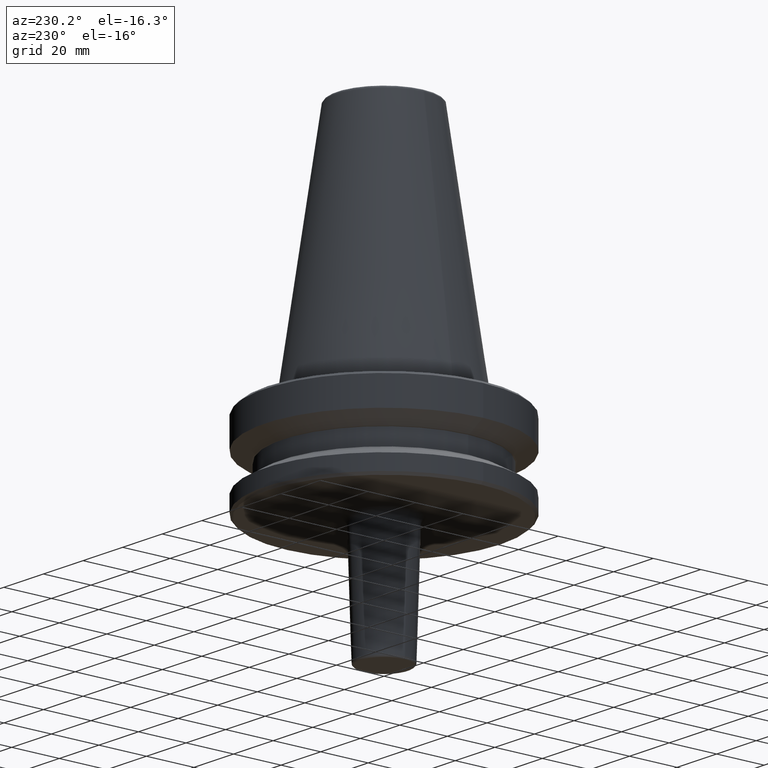
[diagram: clean part render]
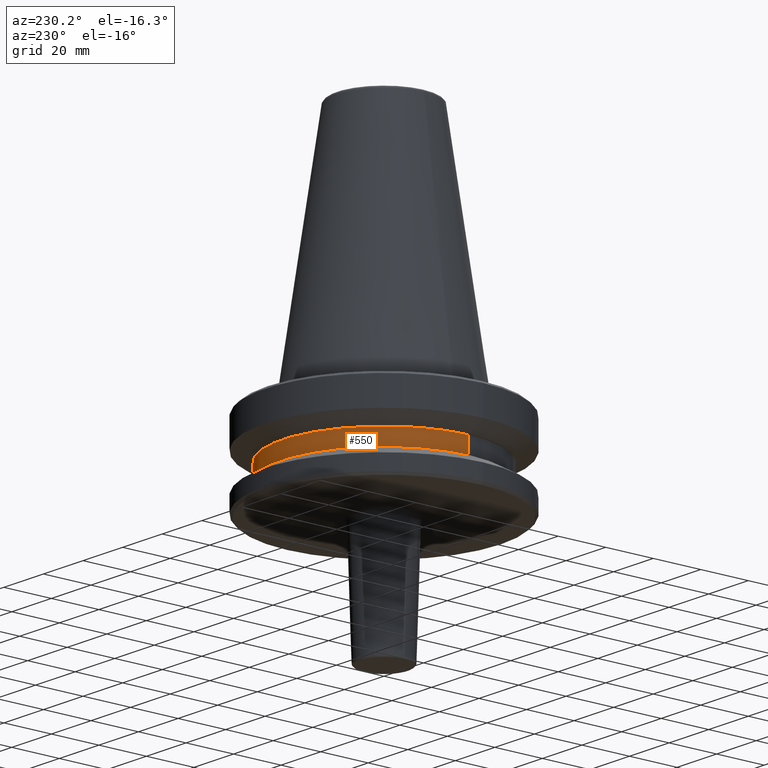
[diagram: same view with one face highlighted and labeled with its STEP entity id]
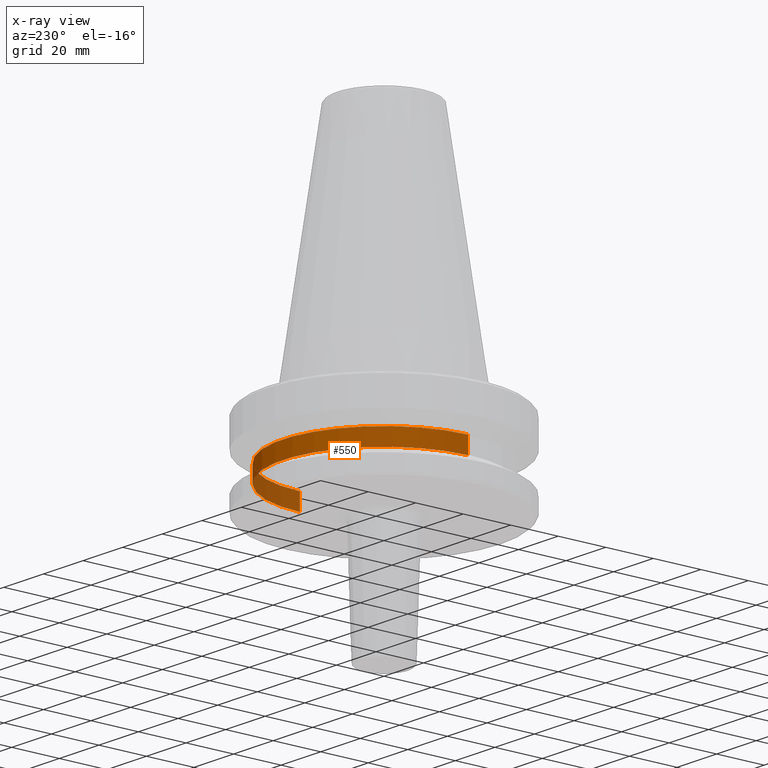
[diagram: x-ray of the same camera — body ghosted, the highlighted face saturated]
A machine part, auxiliary view. The second image highlights one B-rep face of the part: STEP entity #550.
The next image is the same camera in x-ray: the body ghosted, the highlighted face saturated — about 18% of this face is hidden behind the body in this view.
In plain terms, the highlighted cylindrical surface (partial cylindrical patch) has radius 42.5 mm, axis along (-0, -0, 1).
Its self-contained STEP definition (entity closure, byte-faithful):
#27 = LINE ( 'NONE', #349, #595 ) ;
#32 = VERTEX_POINT ( 'NONE', #195 ) ;
#51 = EDGE_LOOP ( 'NONE', ( #950, #237, #276, #78 ) ) ;
#58 = CARTESIAN_POINT ( 'NONE',  ( -42.50000000000000000, 5.204748896376250900E-015, -19.70000000000001000 ) ) ;
#78 = ORIENTED_EDGE ( 'NONE', *, *, #250, .F. ) ;
#101 = DIRECTION ( 'NONE',  ( -0.0000000000000000000, -0.0000000000000000000, 1.000000000000000000 ) ) ;
#105 = EDGE_CURVE ( 'NONE', #32, #893, #962, .T. ) ;
#135 = EDGE_CURVE ( 'NONE', #622, #852, #158, .T. ) ;
#158 = CIRCLE ( 'NONE', #708, 42.50000000000000000 ) ;
#195 = CARTESIAN_POINT ( 'NONE',  ( 42.50000000000000000, 0.0000000000000000000, -26.69999999999998900 ) ) ;
#231 = CARTESIAN_POINT ( 'NONE',  ( -42.50000000000000000, 5.204748896376250900E-015, -26.69999999999998900 ) ) ;
#236 = CARTESIAN_POINT ( 'NONE',  ( 42.50000000000000000, 0.0000000000000000000, 124.5046326327850600 ) ) ;
#237 = ORIENTED_EDGE ( 'NONE', *, *, #535, .T. ) ;
#250 = EDGE_CURVE ( 'NONE', #32, #622, #584, .T. ) ;
#253 = DIRECTION ( 'NONE',  ( -0.0000000000000000000, -0.0000000000000000000, 1.000000000000000000 ) ) ;
#276 = ORIENTED_EDGE ( 'NONE', *, *, #135, .F. ) ;
#305 = CYLINDRICAL_SURFACE ( 'NONE', #388, 42.50000000000000000 ) ;
#313 = CARTESIAN_POINT ( 'NONE',  ( 0.0000000000000000000, 0.0000000000000000000, -19.70000000000001000 ) ) ;
#349 = CARTESIAN_POINT ( 'NONE',  ( -42.50000000000000000, 5.204748896376250900E-015, 124.5046326327850600 ) ) ;
#354 = CARTESIAN_POINT ( 'NONE',  ( 0.0000000000000000000, 0.0000000000000000000, 124.5046326327850600 ) ) ;
#388 = AXIS2_PLACEMENT_3D ( 'NONE', #354, #436, #745 ) ;
#398 = DIRECTION ( 'NONE',  ( -0.0000000000000000000, -0.0000000000000000000, 1.000000000000000000 ) ) ;
#436 = DIRECTION ( 'NONE',  ( -0.0000000000000000000, -0.0000000000000000000, 1.000000000000000000 ) ) ;
#467 = DIRECTION ( 'NONE',  ( 1.000000000000000000, 0.0000000000000000000, 0.0000000000000000000 ) ) ;
#511 = FACE_OUTER_BOUND ( 'NONE', #51, .T. ) ;
#524 = VECTOR ( 'NONE', #398, 1000.000000000000000 ) ;
#535 = EDGE_CURVE ( 'NONE', #893, #852, #27, .T. ) ;
#550 = ADVANCED_FACE ( 'NONE', ( #511 ), #305, .T. ) ;
#572 = DIRECTION ( 'NONE',  ( 1.000000000000000000, 0.0000000000000000000, 0.0000000000000000000 ) ) ;
#584 = LINE ( 'NONE', #236, #524 ) ;
#595 = VECTOR ( 'NONE', #101, 1000.000000000000000 ) ;
#622 = VERTEX_POINT ( 'NONE', #900 ) ;
#677 = CARTESIAN_POINT ( 'NONE',  ( 0.0000000000000000000, 0.0000000000000000000, -26.69999999999998900 ) ) ;
#708 = AXIS2_PLACEMENT_3D ( 'NONE', #313, #253, #572 ) ;
#744 = DIRECTION ( 'NONE',  ( -0.0000000000000000000, -0.0000000000000000000, 1.000000000000000000 ) ) ;
#745 = DIRECTION ( 'NONE',  ( 1.000000000000000000, 0.0000000000000000000, 0.0000000000000000000 ) ) ;
#777 = AXIS2_PLACEMENT_3D ( 'NONE', #677, #744, #467 ) ;
#852 = VERTEX_POINT ( 'NONE', #58 ) ;
#893 = VERTEX_POINT ( 'NONE', #231 ) ;
#900 = CARTESIAN_POINT ( 'NONE',  ( 42.50000000000000000, 0.0000000000000000000, -19.70000000000001000 ) ) ;
#950 = ORIENTED_EDGE ( 'NONE', *, *, #105, .T. ) ;
#962 = CIRCLE ( 'NONE', #777, 42.50000000000000000 ) ;